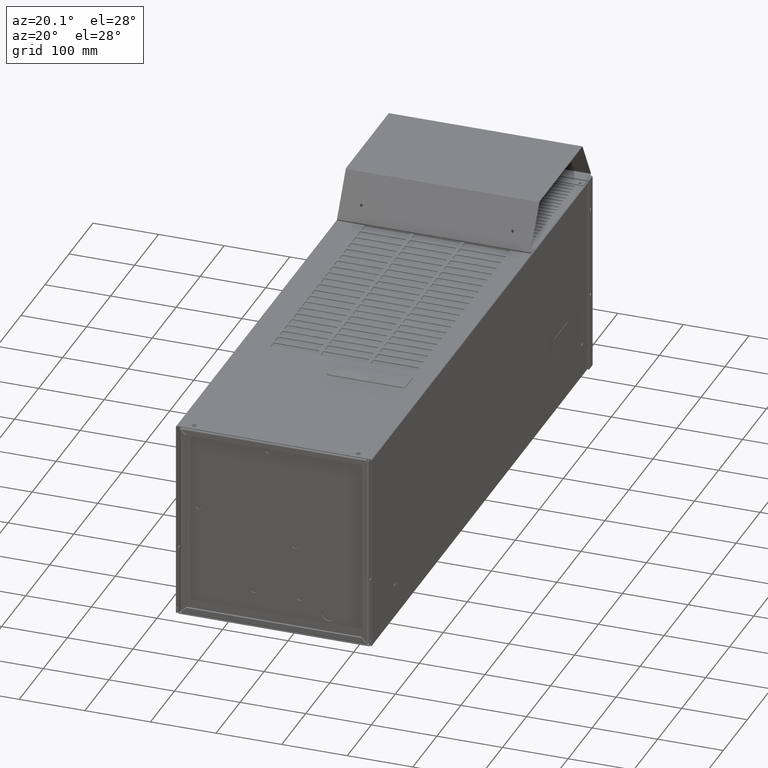
[diagram: clean part render]
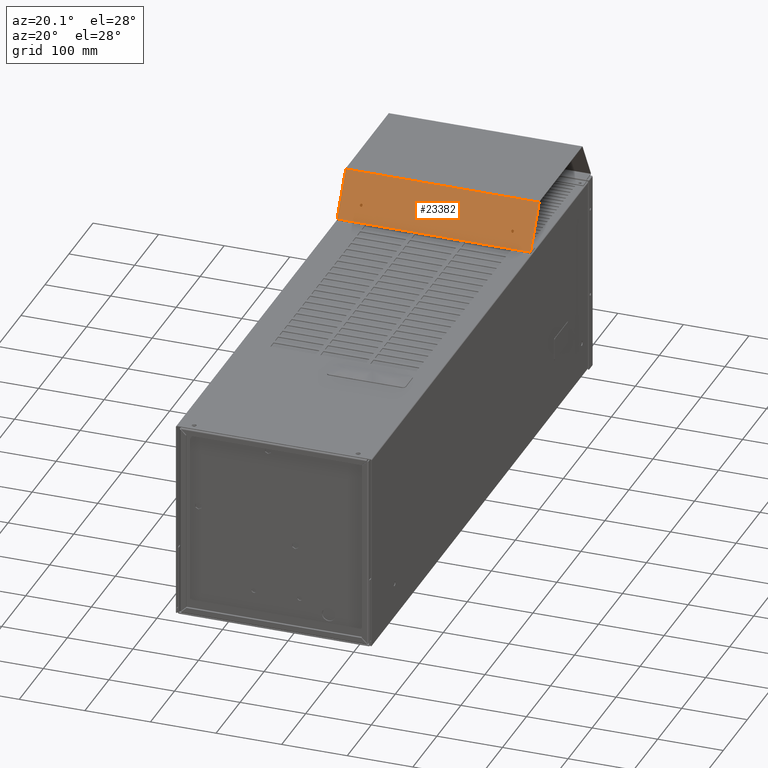
[diagram: same view with one face highlighted and labeled with its STEP entity id]
A machine part, auxiliary view. The second image highlights one B-rep face of the part: STEP entity #23382.
In plain terms, the highlighted planar face has unit normal (0, 0.866, -0.5).
Its self-contained STEP definition (entity closure, byte-faithful):
#773 = EDGE_CURVE ( 'NONE', #12934, #19479, #46057, .T. ) ;
#922 = EDGE_CURVE ( 'NONE', #19737, #54738, #2013, .T. ) ;
#2013 = CIRCLE ( 'NONE', #50893, 0.08267716535433085323 ) ;
#2393 = FACE_BOUND ( 'NONE', #19892, .T. ) ;
#3210 = CIRCLE ( 'NONE', #17472, 0.08267716535433085323 ) ;
#4140 = DIRECTION ( 'NONE',  ( -4.487102901705263670E-19, -0.8660199450861517656, 0.5000094546235888116 ) ) ;
#6180 = CIRCLE ( 'NONE', #59141, 0.08267716535433085323 ) ;
#7340 = CIRCLE ( 'NONE', #55155, 0.08267716535433085323 ) ;
#7489 = PLANE ( 'NONE',  #56654 ) ;
#7668 = VERTEX_POINT ( 'NONE', #11218 ) ;
#7899 = EDGE_CURVE ( 'NONE', #7668, #46910, #6180, .T. ) ;
#9047 = EDGE_CURVE ( 'NONE', #46910, #7668, #3210, .T. ) ;
#9493 = ORIENTED_EDGE ( 'NONE', *, *, #33902, .T. ) ;
#9745 = VECTOR ( 'NONE', #52905, 39.37007874015748143 ) ;
#9858 = DIRECTION ( 'NONE',  ( 0.000000000000000000, 0.5000094546235889226, 0.8660199450861515436 ) ) ;
#11128 = DIRECTION ( 'NONE',  ( -4.487102901705263670E-19, -0.8660199450861517656, 0.5000094546235888116 ) ) ;
#11164 = VECTOR ( 'NONE', #22446, 39.37007874015748854 ) ;
#11218 = CARTESIAN_POINT ( 'NONE',  ( 4.540315676469251827, 8.603790603771221512, 6.881963361381929545 ) ) ;
#12529 = DIRECTION ( 'NONE',  ( -4.487102901705263670E-19, -0.8660199450861517656, 0.5000094546235888116 ) ) ;
#12934 = VERTEX_POINT ( 'NONE', #20704 ) ;
#13403 = DIRECTION ( 'NONE',  ( 0.000000000000000000, 0.5000094546235889226, 0.8660199450861515436 ) ) ;
#15096 = VECTOR ( 'NONE', #46499, 39.37007874015748854 ) ;
#15403 = DIRECTION ( 'NONE',  ( -4.487102901705263670E-19, -0.8660199450861517656, 0.5000094546235888116 ) ) ;
#16005 = EDGE_CURVE ( 'NONE', #54738, #19737, #7340, .T. ) ;
#17472 = AXIS2_PLACEMENT_3D ( 'NONE', #49708, #11128, #9858 ) ;
#17884 = CARTESIAN_POINT ( 'NONE',  ( -5.807086614173227801, 8.151989445797244827, 6.099440530262579152 ) ) ;
#18068 = VERTEX_POINT ( 'NONE', #59517 ) ;
#19479 = VERTEX_POINT ( 'NONE', #60785 ) ;
#19737 = VERTEX_POINT ( 'NONE', #52723 ) ;
#19892 = EDGE_LOOP ( 'NONE', ( #60085, #38355 ) ) ;
#20704 = CARTESIAN_POINT ( 'NONE',  ( -5.807086614173227801, 8.151989445797244827, 6.099440530262579152 ) ) ;
#22446 = DIRECTION ( 'NONE',  ( -8.426927805691693791E-19, 0.5000094546235841486, 0.8660199450861543191 ) ) ;
#22621 = ORIENTED_EDGE ( 'NONE', *, *, #7899, .F. ) ;
#23382 = ADVANCED_FACE ( 'NONE', ( #41904, #2393, #51471 ), #7489, .F. ) ;
#23597 = CARTESIAN_POINT ( 'NONE',  ( 4.540315676469251827, 8.645129968129863229, 6.953563435581968655 ) ) ;
#27455 = DIRECTION ( 'NONE',  ( 1.000000000000000000, 3.276229677454505405E-20, 9.541481430247698699E-19 ) ) ;
#27732 = ORIENTED_EDGE ( 'NONE', *, *, #30260, .F. ) ;
#28092 = ORIENTED_EDGE ( 'NONE', *, *, #52669, .T. ) ;
#28817 = VECTOR ( 'NONE', #27455, 39.37007874015748143 ) ;
#30260 = EDGE_CURVE ( 'NONE', #19479, #59608, #38273, .T. ) ;
#31225 = CARTESIAN_POINT ( 'NONE',  ( 5.807086614173227801, 9.591275872120807122, 8.592294896039152974 ) ) ;
#32116 = CARTESIAN_POINT ( 'NONE',  ( 5.807086614173227801, 9.582326773730846625, 8.576794993738170447 ) ) ;
#33902 = EDGE_CURVE ( 'NONE', #12934, #18068, #55835, .T. ) ;
#35253 = EDGE_LOOP ( 'NONE', ( #51767, #22621 ) ) ;
#35491 = EDGE_LOOP ( 'NONE', ( #28092, #27732, #42841, #9493 ) ) ;
#36157 = CARTESIAN_POINT ( 'NONE',  ( -4.540315676469267814, 8.645129968129863229, 6.953563435581968655 ) ) ;
#36205 = DIRECTION ( 'NONE',  ( -1.000000000000000000, 0.000000000000000000, -8.974036111139739374E-19 ) ) ;
#36328 = LINE ( 'NONE', #31225, #15096 ) ;
#38273 = LINE ( 'NONE', #58008, #9745 ) ;
#38355 = ORIENTED_EDGE ( 'NONE', *, *, #922, .F. ) ;
#39323 = DIRECTION ( 'NONE',  ( 0.000000000000000000, 0.5000094546235889226, 0.8660199450861515436 ) ) ;
#41904 = FACE_OUTER_BOUND ( 'NONE', #35491, .T. ) ;
#42841 = ORIENTED_EDGE ( 'NONE', *, *, #773, .F. ) ;
#42907 = CARTESIAN_POINT ( 'NONE',  ( -4.540315676469267814, 8.686469332488504946, 7.025163509781989113 ) ) ;
#43947 = CARTESIAN_POINT ( 'NONE',  ( 4.540315676469251827, 8.686469332488504946, 7.025163509781989113 ) ) ;
#46057 = LINE ( 'NONE', #46689, #11164 ) ;
#46380 = DIRECTION ( 'NONE',  ( 4.487102901703331962E-19, 0.8660199450861544301, -0.5000094546235842596 ) ) ;
#46499 = DIRECTION ( 'NONE',  ( -8.426927805691693791E-19, 0.5000094546235841486, 0.8660199450861543191 ) ) ;
#46689 = CARTESIAN_POINT ( 'NONE',  ( -5.807086614173227801, 9.591275872120807122, 8.592294896039152974 ) ) ;
#46910 = VERTEX_POINT ( 'NONE', #43947 ) ;
#48876 = CARTESIAN_POINT ( 'NONE',  ( -4.540315676469267814, 8.645129968129863229, 6.953563435581968655 ) ) ;
#49708 = CARTESIAN_POINT ( 'NONE',  ( 4.540315676469251827, 8.645129968129863229, 6.953563435581968655 ) ) ;
#50893 = AXIS2_PLACEMENT_3D ( 'NONE', #48876, #15403, #39323 ) ;
#51471 = FACE_BOUND ( 'NONE', #35253, .T. ) ;
#51767 = ORIENTED_EDGE ( 'NONE', *, *, #9047, .F. ) ;
#52669 = EDGE_CURVE ( 'NONE', #18068, #59608, #36328, .T. ) ;
#52723 = CARTESIAN_POINT ( 'NONE',  ( -4.540315676469267814, 8.603790603771221512, 6.881963361381929545 ) ) ;
#52905 = DIRECTION ( 'NONE',  ( 1.000000000000000000, 3.276229677454505405E-20, 9.541481430247698699E-19 ) ) ;
#54738 = VERTEX_POINT ( 'NONE', #42907 ) ;
#55155 = AXIS2_PLACEMENT_3D ( 'NONE', #36157, #12529, #55573 ) ;
#55573 = DIRECTION ( 'NONE',  ( 0.000000000000000000, 0.5000094546235889226, 0.8660199450861515436 ) ) ;
#55835 = LINE ( 'NONE', #17884, #28817 ) ;
#56654 = AXIS2_PLACEMENT_3D ( 'NONE', #61344, #46380, #36205 ) ;
#58008 = CARTESIAN_POINT ( 'NONE',  ( -5.807086614173227801, 9.582326773730846625, 8.576794993738170447 ) ) ;
#59141 = AXIS2_PLACEMENT_3D ( 'NONE', #23597, #4140, #13403 ) ;
#59517 = CARTESIAN_POINT ( 'NONE',  ( 5.807086614173227801, 8.151989445797244827, 6.099440530262579152 ) ) ;
#59608 = VERTEX_POINT ( 'NONE', #32116 ) ;
#60085 = ORIENTED_EDGE ( 'NONE', *, *, #16005, .F. ) ;
#60785 = CARTESIAN_POINT ( 'NONE',  ( -5.807086614173227801, 9.582326773730846625, 8.576794993738170447 ) ) ;
#61344 = CARTESIAN_POINT ( 'NONE',  ( -5.807086614173227801, 9.591275872120807122, 8.592294896039152974 ) ) ;